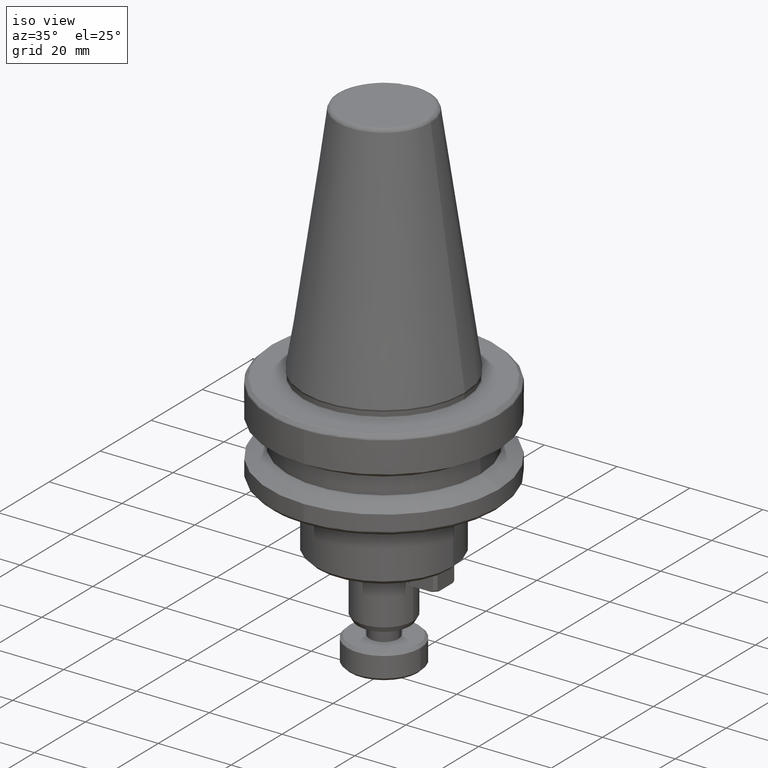
[diagram: clean part render]
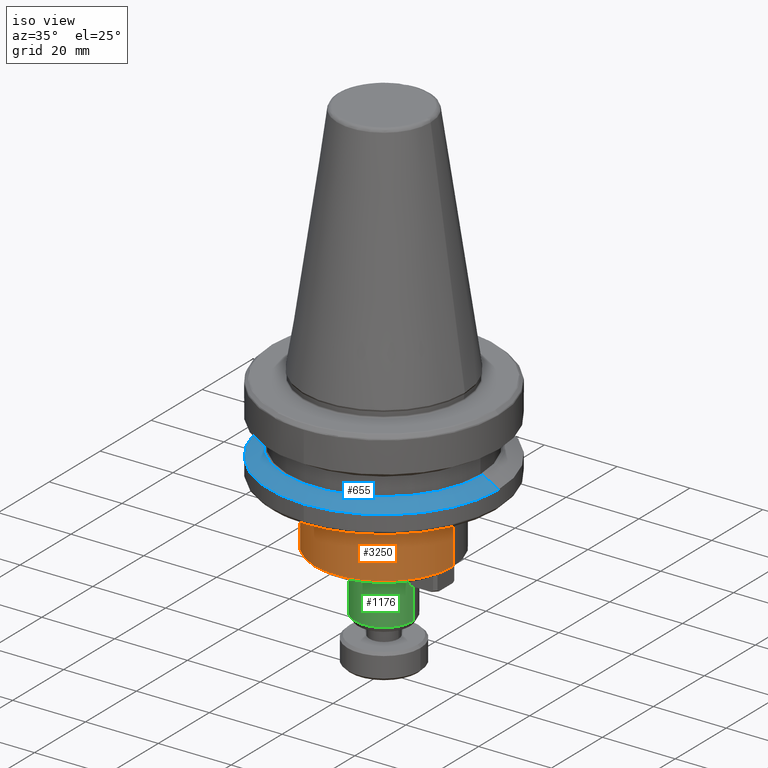
[diagram: same view with three faces highlighted in distinct colors, each labeled with its STEP entity id]
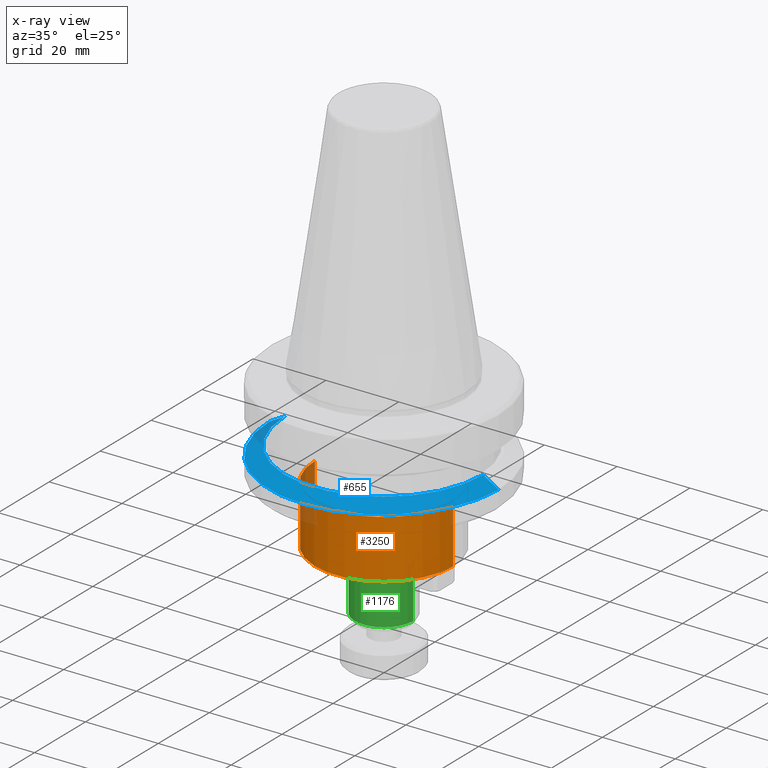
[diagram: x-ray of the same camera — body ghosted, the three highlighted faces saturated]
A machine part, iso view with three faces highlighted in distinct colors.
The next image is the same camera in x-ray (body ghosted, the three faces saturated) — at least one of them is partly hidden behind the body in this view.
Their STEP definitions:

[orange] entity #3250 — the highlighted cylindrical surface (partial cylindrical patch) has radius 19 mm, axis along (0, -0, 1).
#25 = ORIENTED_EDGE ( 'NONE', *, *, #2244, .F. ) ;
#39 = ORIENTED_EDGE ( 'NONE', *, *, #2951, .T. ) ;
#227 = CARTESIAN_POINT ( 'NONE',  ( -19.00000000000000000, 2.326828918379971000E-015, -44.00000000000000000 ) ) ;
#354 = ORIENTED_EDGE ( 'NONE', *, *, #3024, .F. ) ;
#428 = EDGE_LOOP ( 'NONE', ( #354, #39, #3507, #25 ) ) ;
#526 = VECTOR ( 'NONE', #1732, 1000.000000000000000 ) ;
#594 = AXIS2_PLACEMENT_3D ( 'NONE', #1359, #3462, #1665 ) ;
#615 = DIRECTION ( 'NONE',  ( 0.0000000000000000000, -0.0000000000000000000, 1.000000000000000000 ) ) ;
#962 = AXIS2_PLACEMENT_3D ( 'NONE', #3311, #615, #1508 ) ;
#1050 = CARTESIAN_POINT ( 'NONE',  ( 19.00000000000000000, 0.0000000000000000000, -44.00000000000000000 ) ) ;
#1217 = CIRCLE ( 'NONE', #1635, 19.00000000000000000 ) ;
#1259 = VERTEX_POINT ( 'NONE', #1755 ) ;
#1359 = CARTESIAN_POINT ( 'NONE',  ( 0.0000000000000000000, 0.0000000000000000000, -27.99999999999999600 ) ) ;
#1431 = VERTEX_POINT ( 'NONE', #3370 ) ;
#1453 = VERTEX_POINT ( 'NONE', #3088 ) ;
#1465 = LINE ( 'NONE', #1050, #1793 ) ;
#1508 = DIRECTION ( 'NONE',  ( 1.000000000000000000, 0.0000000000000000000, 0.0000000000000000000 ) ) ;
#1546 = EDGE_CURVE ( 'NONE', #1453, #1259, #1465, .T. ) ;
#1635 = AXIS2_PLACEMENT_3D ( 'NONE', #1696, #3801, #1987 ) ;
#1665 = DIRECTION ( 'NONE',  ( 1.000000000000000000, 0.0000000000000000000, -1.826024711554533700E-016 ) ) ;
#1696 = CARTESIAN_POINT ( 'NONE',  ( 0.0000000000000000000, 0.0000000000000000000, -44.00000000000004300 ) ) ;
#1732 = DIRECTION ( 'NONE',  ( 0.0000000000000000000, -0.0000000000000000000, 1.000000000000000000 ) ) ;
#1755 = CARTESIAN_POINT ( 'NONE',  ( 19.00000000005126600, -8.530394700729637400E-010, -27.99999999999999600 ) ) ;
#1793 = VECTOR ( 'NONE', #3155, 1000.000000000000000 ) ;
#1885 = VERTEX_POINT ( 'NONE', #2073 ) ;
#1987 = DIRECTION ( 'NONE',  ( 1.000000000000000000, 0.0000000000000000000, 2.191229653865440500E-015 ) ) ;
#2073 = CARTESIAN_POINT ( 'NONE',  ( -19.00000000000000000, 2.326828918379971000E-015, -44.00000000000004300 ) ) ;
#2244 = EDGE_CURVE ( 'NONE', #1431, #1259, #3386, .T. ) ;
#2254 = LINE ( 'NONE', #227, #526 ) ;
#2951 = EDGE_CURVE ( 'NONE', #1885, #1453, #1217, .T. ) ;
#3024 = EDGE_CURVE ( 'NONE', #1885, #1431, #2254, .T. ) ;
#3088 = CARTESIAN_POINT ( 'NONE',  ( 19.00000000000000000, 0.0000000000000000000, -44.00000000000000000 ) ) ;
#3155 = DIRECTION ( 'NONE',  ( 0.0000000000000000000, -0.0000000000000000000, 1.000000000000000000 ) ) ;
#3250 = ADVANCED_FACE ( 'NONE', ( #3714 ), #3291, .T. ) ;
#3291 = CYLINDRICAL_SURFACE ( 'NONE', #962, 19.00000000000000000 ) ;
#3311 = CARTESIAN_POINT ( 'NONE',  ( 0.0000000000000000000, 0.0000000000000000000, -44.00000000000000000 ) ) ;
#3370 = CARTESIAN_POINT ( 'NONE',  ( -19.00000000005126600, -5.845447712686938100E-009, -27.99999999996670400 ) ) ;
#3386 = CIRCLE ( 'NONE', #594, 19.00000000000000000 ) ;
#3462 = DIRECTION ( 'NONE',  ( 0.0000000000000000000, 0.0000000000000000000, 1.000000000000000000 ) ) ;
#3507 = ORIENTED_EDGE ( 'NONE', *, *, #1546, .T. ) ;
#3714 = FACE_OUTER_BOUND ( 'NONE', #428, .T. ) ;
#3801 = DIRECTION ( 'NONE',  ( 0.0000000000000000000, 0.0000000000000000000, 1.000000000000000000 ) ) ;

[blue] entity #655 — the highlighted conical surface has half-angle 60 deg.
#77 = DIRECTION ( 'NONE',  ( -1.000000000000000000, 0.0000000000000000000, 0.0000000000000000000 ) ) ;
#178 = DIRECTION ( 'NONE',  ( 1.000000000000000000, 0.0000000000000000000, 0.0000000000000000000 ) ) ;
#193 = ORIENTED_EDGE ( 'NONE', *, *, #3722, .T. ) ;
#451 = VERTEX_POINT ( 'NONE', #475 ) ;
#475 = CARTESIAN_POINT ( 'NONE',  ( -31.50000000000000000, 0.0000000000000000000, -21.57777313091598300 ) ) ;
#488 = CIRCLE ( 'NONE', #1393, 31.50000000000000000 ) ;
#637 = FACE_OUTER_BOUND ( 'NONE', #1597, .T. ) ;
#655 = ADVANCED_FACE ( 'NONE', ( #637 ), #1227, .T. ) ;
#674 = VERTEX_POINT ( 'NONE', #729 ) ;
#729 = CARTESIAN_POINT ( 'NONE',  ( 0.0000000000000000000, -31.50000000000000000, -21.57777313091598300 ) ) ;
#760 = VERTEX_POINT ( 'NONE', #1949 ) ;
#791 = DIRECTION ( 'NONE',  ( -0.0000000000000000000, -0.0000000000000000000, 1.000000000000000000 ) ) ;
#848 = CIRCLE ( 'NONE', #2714, 27.20837104761860600 ) ;
#851 = LINE ( 'NONE', #1080, #2852 ) ;
#879 = CARTESIAN_POINT ( 'NONE',  ( 0.0000000000000000000, 0.0000000000000000000, -21.57777313091598300 ) ) ;
#1023 = CARTESIAN_POINT ( 'NONE',  ( -27.20837104761860600, 0.0000000000000000000, -19.09999999999659100 ) ) ;
#1080 = CARTESIAN_POINT ( 'NONE',  ( 27.20837104761860600, 3.332064451347964000E-015, -19.09999999999659100 ) ) ;
#1172 = DIRECTION ( 'NONE',  ( 1.000000000000000000, 0.0000000000000000000, 0.0000000000000000000 ) ) ;
#1194 = ORIENTED_EDGE ( 'NONE', *, *, #2702, .F. ) ;
#1227 = CONICAL_SURFACE ( 'NONE', #3245, 27.20837104761860600, 1.047197551196597900 ) ;
#1255 = DIRECTION ( 'NONE',  ( 0.0000000000000000000, 0.0000000000000000000, -1.000000000000000000 ) ) ;
#1393 = AXIS2_PLACEMENT_3D ( 'NONE', #2581, #791, #2882 ) ;
#1472 = EDGE_CURVE ( 'NONE', #1526, #451, #3121, .T. ) ;
#1526 = VERTEX_POINT ( 'NONE', #1023 ) ;
#1588 = CARTESIAN_POINT ( 'NONE',  ( -27.20837104761860600, 0.0000000000000000000, -19.09999999999659100 ) ) ;
#1597 = EDGE_LOOP ( 'NONE', ( #3520, #1194, #2949, #2534, #193 ) ) ;
#1603 = DIRECTION ( 'NONE',  ( -0.8660254037844387100, 0.0000000000000000000, -0.4999999999999998900 ) ) ;
#1949 = CARTESIAN_POINT ( 'NONE',  ( 27.20837104761860600, 3.594850934331062800E-015, -19.09999999999659100 ) ) ;
#1950 = DIRECTION ( 'NONE',  ( -0.0000000000000000000, -0.0000000000000000000, 1.000000000000000000 ) ) ;
#2302 = EDGE_CURVE ( 'NONE', #451, #674, #488, .T. ) ;
#2534 = ORIENTED_EDGE ( 'NONE', *, *, #2302, .T. ) ;
#2581 = CARTESIAN_POINT ( 'NONE',  ( 0.0000000000000000000, 0.0000000000000000000, -21.57777313091598300 ) ) ;
#2702 = EDGE_CURVE ( 'NONE', #1526, #760, #848, .T. ) ;
#2714 = AXIS2_PLACEMENT_3D ( 'NONE', #3766, #1950, #178 ) ;
#2787 = CARTESIAN_POINT ( 'NONE',  ( 0.0000000000000000000, 0.0000000000000000000, -19.09999999999659100 ) ) ;
#2852 = VECTOR ( 'NONE', #3191, 1000.000000000000000 ) ;
#2882 = DIRECTION ( 'NONE',  ( 1.000000000000000000, 0.0000000000000000000, 0.0000000000000000000 ) ) ;
#2903 = CIRCLE ( 'NONE', #3502, 31.50000000000000000 ) ;
#2949 = ORIENTED_EDGE ( 'NONE', *, *, #1472, .T. ) ;
#2972 = DIRECTION ( 'NONE',  ( -0.0000000000000000000, -0.0000000000000000000, 1.000000000000000000 ) ) ;
#3121 = LINE ( 'NONE', #1588, #3215 ) ;
#3191 = DIRECTION ( 'NONE',  ( 0.8660254037844387100, 1.060575238724906900E-016, -0.4999999999999998900 ) ) ;
#3215 = VECTOR ( 'NONE', #1603, 1000.000000000000000 ) ;
#3226 = VERTEX_POINT ( 'NONE', #3595 ) ;
#3245 = AXIS2_PLACEMENT_3D ( 'NONE', #2787, #1255, #77 ) ;
#3502 = AXIS2_PLACEMENT_3D ( 'NONE', #879, #2972, #1172 ) ;
#3520 = ORIENTED_EDGE ( 'NONE', *, *, #3533, .F. ) ;
#3533 = EDGE_CURVE ( 'NONE', #760, #3226, #851, .T. ) ;
#3595 = CARTESIAN_POINT ( 'NONE',  ( 31.50000000000000000, 3.857637417314162700E-015, -21.57777313091598300 ) ) ;
#3722 = EDGE_CURVE ( 'NONE', #674, #3226, #2903, .T. ) ;
#3766 = CARTESIAN_POINT ( 'NONE',  ( 0.0000000000000000000, 0.0000000000000000000, -19.09999999999659100 ) ) ;

[green] entity #1176 — the highlighted cylindrical surface (edge-blend (fillet) strip) has radius 8 mm, axis along (0, -0, 1).
#177 = ORIENTED_EDGE ( 'NONE', *, *, #759, .F. ) ;
#183 = DIRECTION ( 'NONE',  ( 0.0000000000000000000, 0.0000000000000000000, 1.000000000000000000 ) ) ;
#238 = CARTESIAN_POINT ( 'NONE',  ( 0.0000000000000000000, 0.0000000000000000000, -60.52775681400000700 ) ) ;
#294 = ORIENTED_EDGE ( 'NONE', *, *, #424, .T. ) ;
#424 = EDGE_CURVE ( 'NONE', #1467, #829, #2516, .T. ) ;
#480 = VECTOR ( 'NONE', #577, 1000.000000000000000 ) ;
#577 = DIRECTION ( 'NONE',  ( 0.0000000000000000000, -0.0000000000000000000, 1.000000000000000000 ) ) ;
#690 = VERTEX_POINT ( 'NONE', #2172 ) ;
#737 = ORIENTED_EDGE ( 'NONE', *, *, #1842, .F. ) ;
#759 = EDGE_CURVE ( 'NONE', #1467, #2007, #2558, .T. ) ;
#782 = CARTESIAN_POINT ( 'NONE',  ( -8.000000000000000000, 9.797174393178825700E-016, -60.52775681400000700 ) ) ;
#829 = VERTEX_POINT ( 'NONE', #3465 ) ;
#953 = CARTESIAN_POINT ( 'NONE',  ( -8.000000000000000000, 9.797174393178825700E-016, -45.00000000000000000 ) ) ;
#1176 = ADVANCED_FACE ( 'NONE', ( #1967 ), #2460, .T. ) ;
#1177 = CARTESIAN_POINT ( 'NONE',  ( 0.0000000000000000000, 0.0000000000000000000, -45.00000000000000000 ) ) ;
#1299 = CARTESIAN_POINT ( 'NONE',  ( -8.000000000000000000, 9.797174393178825700E-016, -60.52775681400002100 ) ) ;
#1467 = VERTEX_POINT ( 'NONE', #1299 ) ;
#1479 = DIRECTION ( 'NONE',  ( 1.000000000000000000, 0.0000000000000000000, 0.0000000000000000000 ) ) ;
#1842 = EDGE_CURVE ( 'NONE', #2007, #690, #3482, .T. ) ;
#1957 = DIRECTION ( 'NONE',  ( 1.000000000000000000, 0.0000000000000000000, 1.734723475976807100E-015 ) ) ;
#1967 = FACE_OUTER_BOUND ( 'NONE', #2217, .T. ) ;
#2007 = VERTEX_POINT ( 'NONE', #953 ) ;
#2025 = DIRECTION ( 'NONE',  ( 1.000000000000000000, 0.0000000000000000000, 0.0000000000000000000 ) ) ;
#2051 = CARTESIAN_POINT ( 'NONE',  ( 8.000000000000000000, 0.0000000000000000000, -60.52775681400000700 ) ) ;
#2075 = AXIS2_PLACEMENT_3D ( 'NONE', #238, #3841, #2025 ) ;
#2125 = AXIS2_PLACEMENT_3D ( 'NONE', #1177, #3282, #1479 ) ;
#2172 = CARTESIAN_POINT ( 'NONE',  ( 8.000000000000000000, 0.0000000000000000000, -45.00000000000000000 ) ) ;
#2217 = EDGE_LOOP ( 'NONE', ( #177, #294, #3434, #737 ) ) ;
#2270 = DIRECTION ( 'NONE',  ( 0.0000000000000000000, -0.0000000000000000000, 1.000000000000000000 ) ) ;
#2276 = CARTESIAN_POINT ( 'NONE',  ( 0.0000000000000000000, 0.0000000000000000000, -60.52775681400002100 ) ) ;
#2460 = CYLINDRICAL_SURFACE ( 'NONE', #2075, 8.000000000000000000 ) ;
#2516 = CIRCLE ( 'NONE', #2517, 8.000000000000000000 ) ;
#2517 = AXIS2_PLACEMENT_3D ( 'NONE', #2276, #183, #1957 ) ;
#2558 = LINE ( 'NONE', #782, #3486 ) ;
#2718 = LINE ( 'NONE', #2051, #480 ) ;
#3085 = EDGE_CURVE ( 'NONE', #829, #690, #2718, .T. ) ;
#3282 = DIRECTION ( 'NONE',  ( 0.0000000000000000000, -0.0000000000000000000, 1.000000000000000000 ) ) ;
#3434 = ORIENTED_EDGE ( 'NONE', *, *, #3085, .T. ) ;
#3465 = CARTESIAN_POINT ( 'NONE',  ( 8.000000000000000000, 0.0000000000000000000, -60.52775681400000700 ) ) ;
#3482 = CIRCLE ( 'NONE', #2125, 8.000000000000000000 ) ;
#3486 = VECTOR ( 'NONE', #2270, 1000.000000000000000 ) ;
#3841 = DIRECTION ( 'NONE',  ( 0.0000000000000000000, -0.0000000000000000000, 1.000000000000000000 ) ) ;